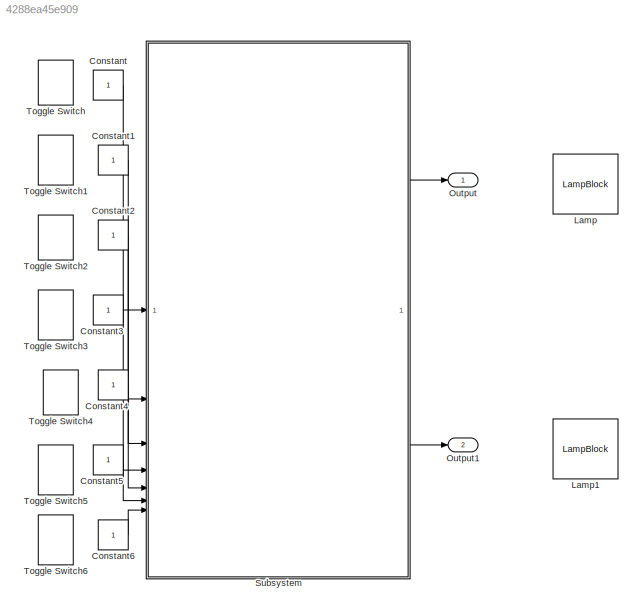
MODEL slx_4288ea45e909
KIND model
CONFIG AbsTol = auto
CONFIG EnableMultiTasking = off
CONFIG FixedStep = 0.01
CONFIG MaxStep = auto
CONFIG MinStep = auto
CONFIG RelTol = 1e-3
CONFIG SampleTimeConstraint = Unconstrained
CONFIG SolverName = FixedStepDiscrete
CONFIG StartTime = 0.0
CONFIG StopTime = inf
WORKSPACE source: mxarray member
WORKSPACE SEDAN = 1
WORKSPACE SUV = 0
WORKSPACE active = 1
WORKSPACE auto = 1
WORKSPACE close = 0
WORKSPACE cond_door_miss = 0
WORKSPACE cond_door_ok = 1
WORKSPACE fail_off = 0
WORKSPACE fail_on = 1
WORKSPACE ign_off = 0
WORKSPACE ign_on = 1
WORKSPACE key_off = 0
WORKSPACE key_on = 1
WORKSPACE manu = 0
WORKSPACE not_Active = 0
WORKSPACE open = 1
WORKSPACE recovery = 3
BLOCK [Constant] Constant
BLOCK [Constant] Constant1
BLOCK [Constant] Constant2
BLOCK [Constant] Constant3
BLOCK [Constant] Constant4
BLOCK [Constant] Constant5
BLOCK [Constant] Constant6
BLOCK [LampBlock] Lamp
  LabelPosition = Hide
BLOCK [LampBlock] Lamp1
  LabelPosition = Hide
BLOCK [Outport] Output
BLOCK [Outport] Output1
  Port = 2
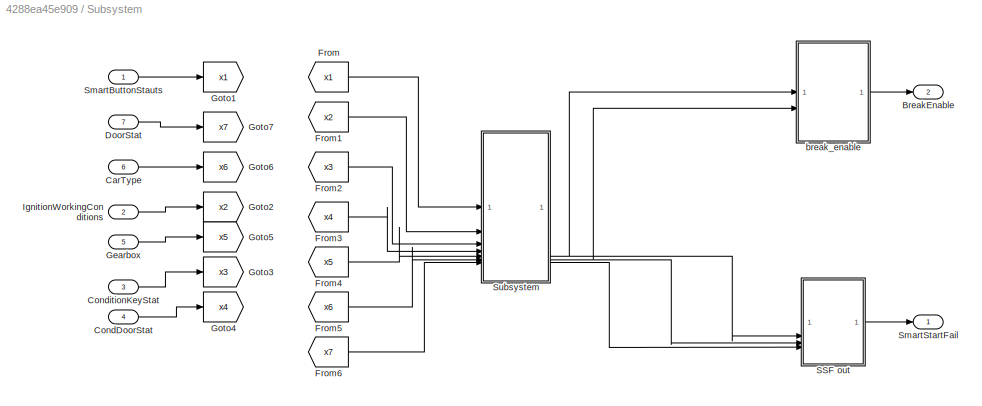
BLOCK [SubSystem] Subsystem
BLOCK [Outport] Subsystem/BreakEnable
  Port = 2
BLOCK [Inport] Subsystem/CarType
  Port = 6
BLOCK [Inport] Subsystem/CondDoorStat
  Port = 4
BLOCK [Inport] Subsystem/ConditionKeyStat
  Port = 3
BLOCK [Inport] Subsystem/DoorStat
  Port = 7
BLOCK [From] Subsystem/From
  GotoTag = x1
BLOCK [From] Subsystem/From1
  GotoTag = x2
BLOCK [From] Subsystem/From2
  GotoTag = x3
BLOCK [From] Subsystem/From3
  GotoTag = x4
BLOCK [From] Subsystem/From4
  GotoTag = x5
BLOCK [From] Subsystem/From5
  GotoTag = x6
BLOCK [From] Subsystem/From6
  GotoTag = x7
BLOCK [Inport] Subsystem/Gearbox
  Port = 5
BLOCK [Goto] Subsystem/Goto1
  GotoTag = x1
BLOCK [Goto] Subsystem/Goto2
  GotoTag = x2
BLOCK [Goto] Subsystem/Goto3
  GotoTag = x3
BLOCK [Goto] Subsystem/Goto4
  GotoTag = x4
BLOCK [Goto] Subsystem/Goto5
  GotoTag = x5
BLOCK [Goto] Subsystem/Goto6
  GotoTag = x6
BLOCK [Goto] Subsystem/Goto7
  GotoTag = x7
BLOCK [Inport] Subsystem/IgnitionWorkingConditions
  Port = 2
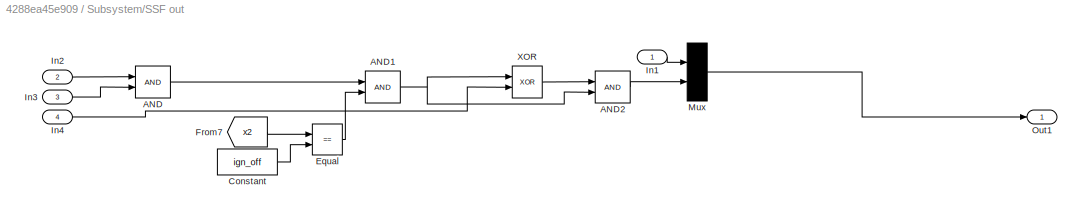
BLOCK [SubSystem] Subsystem/SSF out
BLOCK [Logic] Subsystem/SSF out/AND
  AllPortsSameDT = off
  IconShape = distinctive
  OutDataTypeStr = boolean
BLOCK [Logic] Subsystem/SSF out/AND1
  AllPortsSameDT = off
  IconShape = distinctive
  OutDataTypeStr = boolean
BLOCK [Logic] Subsystem/SSF out/AND2
  AllPortsSameDT = off
  IconShape = distinctive
  OutDataTypeStr = boolean
BLOCK [Constant] Subsystem/SSF out/Constant
  Value = ign_off
BLOCK [RelationalOperator] Subsystem/SSF out/Equal
  InputSameDT = off
  Operator = ==
  OutDataTypeStr = boolean
  RndMeth = Simplest
BLOCK [From] Subsystem/SSF out/From7
  GotoTag = x2
BLOCK [Inport] Subsystem/SSF out/In1
BLOCK [Inport] Subsystem/SSF out/In2
  Port = 2
BLOCK [Inport] Subsystem/SSF out/In3
  Port = 3
BLOCK [Inport] Subsystem/SSF out/In4
  Port = 4
BLOCK [Mux] Subsystem/SSF out/Mux
  DisplayOption = bar
  Inputs = 2
BLOCK [Outport] Subsystem/SSF out/Out1
BLOCK [Logic] Subsystem/SSF out/XOR
  AllPortsSameDT = off
  IconShape = distinctive
  Operator = XOR
  OutDataTypeStr = boolean
BLOCK [Inport] Subsystem/SmartButtonStauts
BLOCK [Outport] Subsystem/SmartStartFail
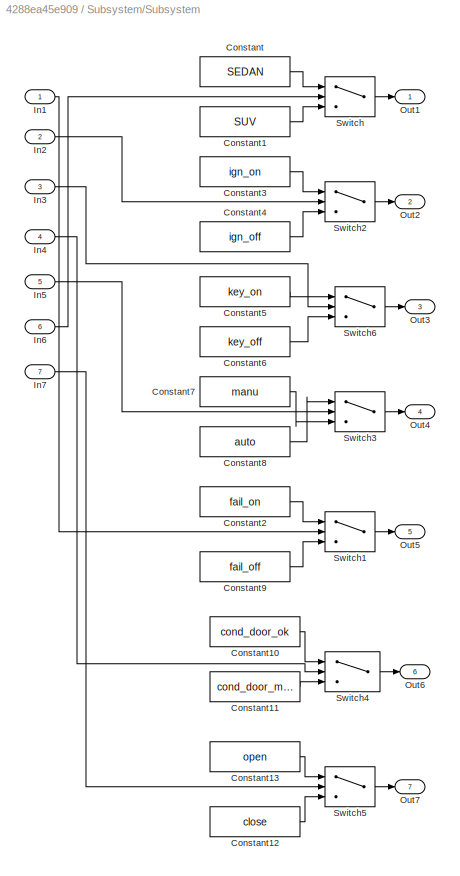
BLOCK [SubSystem] Subsystem/Subsystem
BLOCK [Constant] Subsystem/Subsystem/Constant
  Value = SEDAN
BLOCK [Constant] Subsystem/Subsystem/Constant1
  SampleTime = -1
  Value = SUV
BLOCK [Constant] Subsystem/Subsystem/Constant10
  SampleTime = -1
  Value = cond_door_ok
BLOCK [Constant] Subsystem/Subsystem/Constant11
  SampleTime = -1
  Value = cond_door_miss
BLOCK [Constant] Subsystem/Subsystem/Constant12
  SampleTime = -1
  Value = close
BLOCK [Constant] Subsystem/Subsystem/Constant13
  SampleTime = -1
  Value = open
BLOCK [Constant] Subsystem/Subsystem/Constant2
  SampleTime = -1
  Value = fail_on
BLOCK [Constant] Subsystem/Subsystem/Constant3
  SampleTime = -1
  Value = ign_on
BLOCK [Constant] Subsystem/Subsystem/Constant4
  SampleTime = -1
  Value = ign_off
BLOCK [Constant] Subsystem/Subsystem/Constant5
  SampleTime = -1
  Value = key_on
BLOCK [Constant] Subsystem/Subsystem/Constant6
  SampleTime = -1
  Value = key_off
BLOCK [Constant] Subsystem/Subsystem/Constant7
  SampleTime = -1
  Value = manu
BLOCK [Constant] Subsystem/Subsystem/Constant8
  SampleTime = -1
  Value = auto
BLOCK [Constant] Subsystem/Subsystem/Constant9
  SampleTime = -1
  Value = fail_off
BLOCK [Inport] Subsystem/Subsystem/In1
BLOCK [Inport] Subsystem/Subsystem/In2
  Port = 2
BLOCK [Inport] Subsystem/Subsystem/In3
  Port = 3
BLOCK [Inport] Subsystem/Subsystem/In4
  Port = 4
BLOCK [Inport] Subsystem/Subsystem/In5
  Port = 5
BLOCK [Inport] Subsystem/Subsystem/In6
  Port = 6
BLOCK [Inport] Subsystem/Subsystem/In7
  Port = 7
BLOCK [Outport] Subsystem/Subsystem/Out1
BLOCK [Outport] Subsystem/Subsystem/Out2
  Port = 2
BLOCK [Outport] Subsystem/Subsystem/Out3
  Port = 3
BLOCK [Outport] Subsystem/Subsystem/Out4
  Port = 4
BLOCK [Outport] Subsystem/Subsystem/Out5
  Port = 5
BLOCK [Outport] Subsystem/Subsystem/Out6
  Port = 6
BLOCK [Outport] Subsystem/Subsystem/Out7
  Port = 7
BLOCK [Switch] Subsystem/Subsystem/Switch
  Criteria = u2 ~= 0
  InputSameDT = off
  SaturateOnIntegerOverflow = off
BLOCK [Switch] Subsystem/Subsystem/Switch1
  Criteria = u2 ~= 0
  InputSameDT = off
  SaturateOnIntegerOverflow = off
BLOCK [Switch] Subsystem/Subsystem/Switch2
  Criteria = u2 ~= 0
  InputSameDT = off
  SaturateOnIntegerOverflow = off
BLOCK [Switch] Subsystem/Subsystem/Switch3
  Criteria = u2 ~= 0
  InputSameDT = off
  SaturateOnIntegerOverflow = off
BLOCK [Switch] Subsystem/Subsystem/Switch4
  Criteria = u2 ~= 0
  InputSameDT = off
  SaturateOnIntegerOverflow = off
BLOCK [Switch] Subsystem/Subsystem/Switch5
  Criteria = u2 ~= 0
  InputSameDT = off
  SaturateOnIntegerOverflow = off
BLOCK [Switch] Subsystem/Subsystem/Switch6
  Criteria = u2 ~= 0
  InputSameDT = off
  SaturateOnIntegerOverflow = off
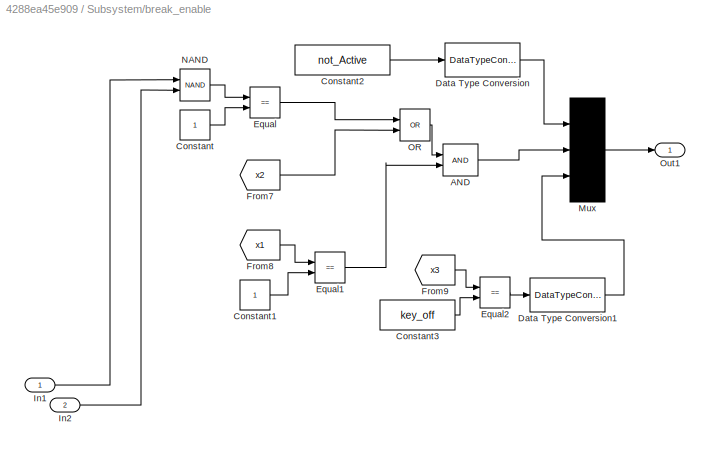
BLOCK [SubSystem] Subsystem/break_enable
BLOCK [Logic] Subsystem/break_enable/AND
  AllPortsSameDT = off
  IconShape = distinctive
  OutDataTypeStr = boolean
BLOCK [Constant] Subsystem/break_enable/Constant
BLOCK [Constant] Subsystem/break_enable/Constant1
BLOCK [Constant] Subsystem/break_enable/Constant2
  Value = not_Active
BLOCK [Constant] Subsystem/break_enable/Constant3
  Value = key_off
BLOCK [DataTypeConversion] Subsystem/break_enable/Data Type Conversion
  RndMeth = Floor
  SaturateOnIntegerOverflow = off
BLOCK [DataTypeConversion] Subsystem/break_enable/Data Type Conversion1
  RndMeth = Floor
  SaturateOnIntegerOverflow = off
BLOCK [RelationalOperator] Subsystem/break_enable/Equal
  InputSameDT = off
  Operator = ==
  OutDataTypeStr = boolean
  RndMeth = Simplest
BLOCK [RelationalOperator] Subsystem/break_enable/Equal1
  InputSameDT = off
  Operator = ==
  OutDataTypeStr = boolean
  RndMeth = Simplest
BLOCK [RelationalOperator] Subsystem/break_enable/Equal2
  InputSameDT = off
  Operator = ==
  OutDataTypeStr = boolean
  RndMeth = Simplest
BLOCK [From] Subsystem/break_enable/From7
  GotoTag = x2
BLOCK [From] Subsystem/break_enable/From8
  GotoTag = x1
BLOCK [From] Subsystem/break_enable/From9
  GotoTag = x3
BLOCK [Inport] Subsystem/break_enable/In1
BLOCK [Inport] Subsystem/break_enable/In2
  Port = 2
BLOCK [Mux] Subsystem/break_enable/Mux
  DisplayOption = bar
  Inputs = 3
BLOCK [Logic] Subsystem/break_enable/NAND
  AllPortsSameDT = off
  IconShape = distinctive
  Operator = NAND
  OutDataTypeStr = boolean
BLOCK [Logic] Subsystem/break_enable/OR
  AllPortsSameDT = off
  IconShape = distinctive
  Operator = OR
  OutDataTypeStr = boolean
BLOCK [Outport] Subsystem/break_enable/Out1
BLOCK [ToggleSwitchBlock] Toggle Switch
BLOCK [ToggleSwitchBlock] Toggle Switch1
BLOCK [ToggleSwitchBlock] Toggle Switch2
BLOCK [ToggleSwitchBlock] Toggle Switch3
BLOCK [ToggleSwitchBlock] Toggle Switch4
BLOCK [ToggleSwitchBlock] Toggle Switch5
BLOCK [ToggleSwitchBlock] Toggle Switch6
LINE Constant1:1 -> Subsystem:2
LINE Constant2:1 -> Subsystem:3
LINE Constant3:1 -> Subsystem:4
LINE Constant4:1 -> Subsystem:5
LINE Constant5:1 -> Subsystem:6
LINE Constant6:1 -> Subsystem:7
LINE Constant:1 -> Subsystem:1
LINE Subsystem/CarType:1 -> Subsystem/Goto6:1
LINE Subsystem/CondDoorStat:1 -> Subsystem/Goto4:1
LINE Subsystem/ConditionKeyStat:1 -> Subsystem/Goto3:1
LINE Subsystem/DoorStat:1 -> Subsystem/Goto7:1
LINE Subsystem/From1:1 -> Subsystem/Subsystem:2
LINE Subsystem/From2:1 -> Subsystem/Subsystem:3
LINE Subsystem/From3:1 -> Subsystem/Subsystem:4
LINE Subsystem/From4:1 -> Subsystem/Subsystem:5
LINE Subsystem/From5:1 -> Subsystem/Subsystem:6
LINE Subsystem/From6:1 -> Subsystem/Subsystem:7
LINE Subsystem/From:1 -> Subsystem/Subsystem:1
LINE Subsystem/Gearbox:1 -> Subsystem/Goto5:1
LINE Subsystem/IgnitionWorkingConditions:1 -> Subsystem/Goto2:1
NET Subsystem/SSF out/AND1:1 -> Subsystem/SSF out/AND2:2, Subsystem/SSF out/XOR:1
LINE Subsystem/SSF out/AND2:1 -> Subsystem/SSF out/Mux:2
LINE Subsystem/SSF out/AND:1 -> Subsystem/SSF out/AND1:1
LINE Subsystem/SSF out/Constant:1 -> Subsystem/SSF out/Equal:2
LINE Subsystem/SSF out/Equal:1 -> Subsystem/SSF out/AND1:2
LINE Subsystem/SSF out/From7:1 -> Subsystem/SSF out/Equal:1
LINE Subsystem/SSF out/In1:1 -> Subsystem/SSF out/Mux:1
LINE Subsystem/SSF out/In2:1 -> Subsystem/SSF out/AND:1
LINE Subsystem/SSF out/In3:1 -> Subsystem/SSF out/AND:2
LINE Subsystem/SSF out/In4:1 -> Subsystem/SSF out/XOR:2
LINE Subsystem/SSF out/Mux:1 -> Subsystem/SSF out/Out1:1
LINE Subsystem/SSF out/XOR:1 -> Subsystem/SSF out/AND2:1
LINE Subsystem/SSF out:1 -> Subsystem/SmartStartFail:1
LINE Subsystem/SmartButtonStauts:1 -> Subsystem/Goto1:1
LINE Subsystem/Subsystem/Constant10:1 -> Subsystem/Subsystem/Switch4:1
LINE Subsystem/Subsystem/Constant11:1 -> Subsystem/Subsystem/Switch4:3
LINE Subsystem/Subsystem/Constant12:1 -> Subsystem/Subsystem/Switch5:3
LINE Subsystem/Subsystem/Constant13:1 -> Subsystem/Subsystem/Switch5:1
LINE Subsystem/Subsystem/Constant1:1 -> Subsystem/Subsystem/Switch:3
LINE Subsystem/Subsystem/Constant2:1 -> Subsystem/Subsystem/Switch1:1
LINE Subsystem/Subsystem/Constant3:1 -> Subsystem/Subsystem/Switch2:1
LINE Subsystem/Subsystem/Constant4:1 -> Subsystem/Subsystem/Switch2:3
LINE Subsystem/Subsystem/Constant5:1 -> Subsystem/Subsystem/Switch6:1
LINE Subsystem/Subsystem/Constant6:1 -> Subsystem/Subsystem/Switch6:3
LINE Subsystem/Subsystem/Constant7:1 -> Subsystem/Subsystem/Switch3:3
LINE Subsystem/Subsystem/Constant8:1 -> Subsystem/Subsystem/Switch3:1
LINE Subsystem/Subsystem/Constant9:1 -> Subsystem/Subsystem/Switch1:3
LINE Subsystem/Subsystem/Constant:1 -> Subsystem/Subsystem/Switch:1
LINE Subsystem/Subsystem/In1:1 -> Subsystem/Subsystem/Switch1:2
LINE Subsystem/Subsystem/In2:1 -> Subsystem/Subsystem/Switch2:2
LINE Subsystem/Subsystem/In3:1 -> Subsystem/Subsystem/Switch6:2
LINE Subsystem/Subsystem/In4:1 -> Subsystem/Subsystem/Switch4:2
LINE Subsystem/Subsystem/In5:1 -> Subsystem/Subsystem/Switch3:2
LINE Subsystem/Subsystem/In6:1 -> Subsystem/Subsystem/Switch:2
LINE Subsystem/Subsystem/In7:1 -> Subsystem/Subsystem/Switch5:2
LINE Subsystem/Subsystem/Switch1:1 -> Subsystem/Subsystem/Out5:1
LINE Subsystem/Subsystem/Switch2:1 -> Subsystem/Subsystem/Out2:1
LINE Subsystem/Subsystem/Switch3:1 -> Subsystem/Subsystem/Out4:1
LINE Subsystem/Subsystem/Switch4:1 -> Subsystem/Subsystem/Out6:1
LINE Subsystem/Subsystem/Switch5:1 -> Subsystem/Subsystem/Out7:1
LINE Subsystem/Subsystem/Switch6:1 -> Subsystem/Subsystem/Out3:1
LINE Subsystem/Subsystem/Switch:1 -> Subsystem/Subsystem/Out1:1
NET Subsystem/Subsystem:5 -> Subsystem/SSF out:2, Subsystem/break_enable:1
NET Subsystem/Subsystem:6 -> Subsystem/SSF out:3, Subsystem/break_enable:2
LINE Subsystem/Subsystem:7 -> Subsystem/SSF out:4
LINE Subsystem/break_enable/AND:1 -> Subsystem/break_enable/Mux:2
LINE Subsystem/break_enable/Constant1:1 -> Subsystem/break_enable/Equal1:2
LINE Subsystem/break_enable/Constant2:1 -> Subsystem/break_enable/Data Type Conversion:1
LINE Subsystem/break_enable/Constant3:1 -> Subsystem/break_enable/Equal2:2
LINE Subsystem/break_enable/Constant:1 -> Subsystem/break_enable/Equal:2
LINE Subsystem/break_enable/Data Type Conversion1:1 -> Subsystem/break_enable/Mux:3
LINE Subsystem/break_enable/Data Type Conversion:1 -> Subsystem/break_enable/Mux:1
LINE Subsystem/break_enable/Equal1:1 -> Subsystem/break_enable/AND:2
LINE Subsystem/break_enable/Equal2:1 -> Subsystem/break_enable/Data Type Conversion1:1
LINE Subsystem/break_enable/Equal:1 -> Subsystem/break_enable/OR:1
LINE Subsystem/break_enable/From7:1 -> Subsystem/break_enable/OR:2
LINE Subsystem/break_enable/From8:1 -> Subsystem/break_enable/Equal1:1
LINE Subsystem/break_enable/From9:1 -> Subsystem/break_enable/Equal2:1
LINE Subsystem/break_enable/In1:1 -> Subsystem/break_enable/NAND:1
LINE Subsystem/break_enable/In2:1 -> Subsystem/break_enable/NAND:2
LINE Subsystem/break_enable/Mux:1 -> Subsystem/break_enable/Out1:1
LINE Subsystem/break_enable/NAND:1 -> Subsystem/break_enable/Equal:1
LINE Subsystem/break_enable/OR:1 -> Subsystem/break_enable/AND:1
LINE Subsystem/break_enable:1 -> Subsystem/BreakEnable:1
LINE Subsystem:1 -> Output:1
LINE Subsystem:2 -> Output1:1
note: NET lines group one-source signal fan-out (src -> all destinations, sorted); 1:1 wires keep LINE
